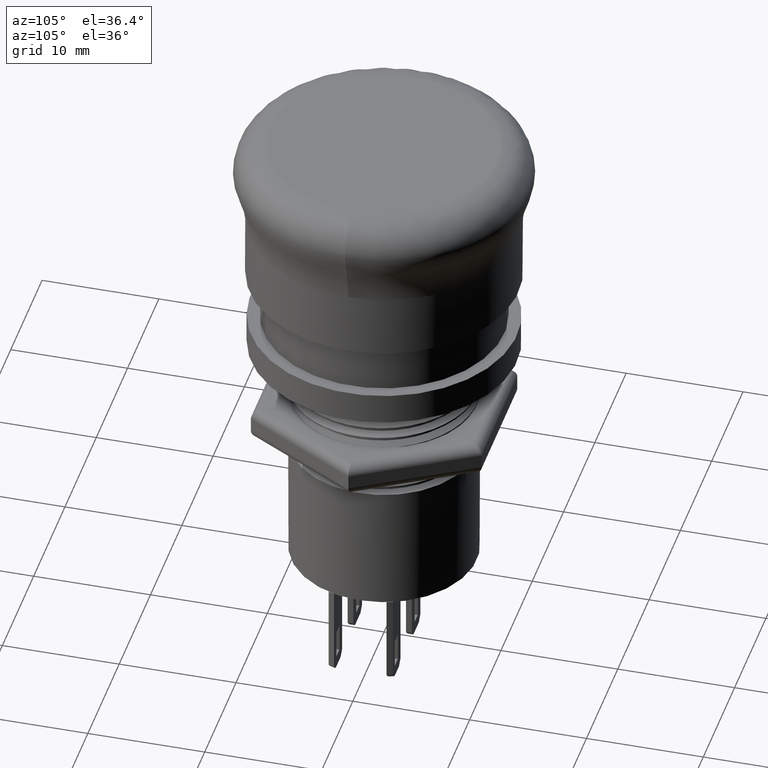
[diagram: clean part render]
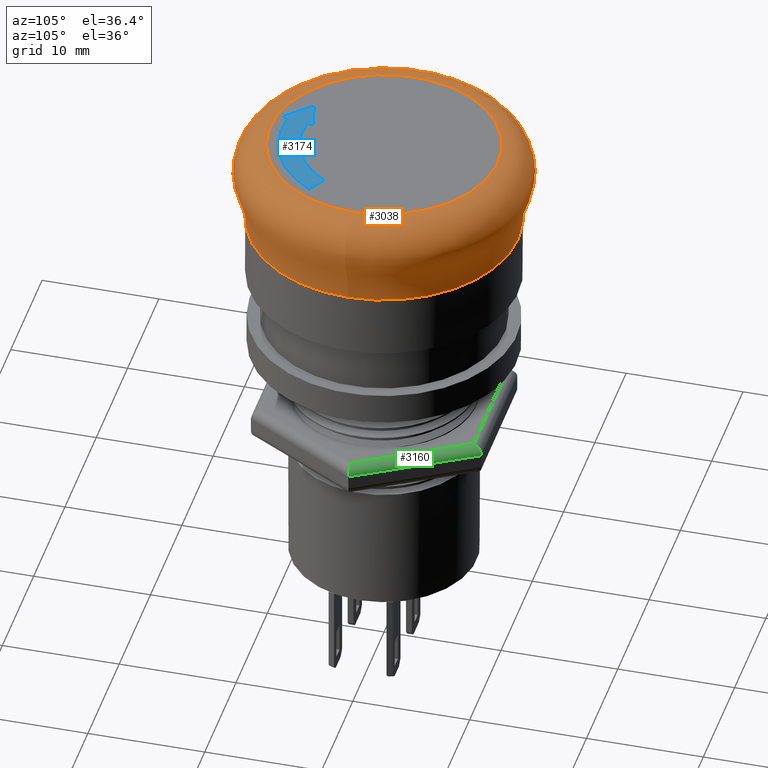
[diagram: same view with three faces highlighted in distinct colors, each labeled with its STEP entity id]
A machine part, auxiliary view with three faces highlighted in distinct colors.
Their STEP definitions:

[orange] entity #3038 — the highlighted face is a freeform B-spline surface patch.
#131=(
BOUNDED_CURVE()
B_SPLINE_CURVE(5,(#4568,#4569,#4570,#4571,#4572,#4573,#4574,#4575,#4576,
#4577,#4578,#4579,#4580,#4581,#4582),.UNSPECIFIED.,.F.,.F.)
B_SPLINE_CURVE_WITH_KNOTS((6,1,1,1,1,1,1,1,1,1,6),(0.,0.1,0.2,0.3,0.4,0.5,
0.6,0.7,0.8,0.9,1.),.UNSPECIFIED.)
CURVE()
GEOMETRIC_REPRESENTATION_ITEM()
RATIONAL_B_SPLINE_CURVE((1.,1.,1.,1.,1.,1.,1.,1.,1.,1.,1.,1.,1.,1.,1.))
REPRESENTATION_ITEM('')
);
#140=(
BOUNDED_SURFACE()
B_SPLINE_SURFACE(5,2,((#4432,#4433,#4434,#4435,#4436,#4437,#4438,#4439,
#4440),(#4441,#4442,#4443,#4444,#4445,#4446,#4447,#4448,#4449),(#4450,#4451,
#4452,#4453,#4454,#4455,#4456,#4457,#4458),(#4459,#4460,#4461,#4462,#4463,
#4464,#4465,#4466,#4467),(#4468,#4469,#4470,#4471,#4472,#4473,#4474,#4475,
#4476),(#4477,#4478,#4479,#4480,#4481,#4482,#4483,#4484,#4485),(#4486,#4487,
#4488,#4489,#4490,#4491,#4492,#4493,#4494),(#4495,#4496,#4497,#4498,#4499,
#4500,#4501,#4502,#4503),(#4504,#4505,#4506,#4507,#4508,#4509,#4510,#4511,
#4512),(#4513,#4514,#4515,#4516,#4517,#4518,#4519,#4520,#4521),(#4522,#4523,
#4524,#4525,#4526,#4527,#4528,#4529,#4530),(#4531,#4532,#4533,#4534,#4535,
#4536,#4537,#4538,#4539),(#4540,#4541,#4542,#4543,#4544,#4545,#4546,#4547,
#4548),(#4549,#4550,#4551,#4552,#4553,#4554,#4555,#4556,#4557),(#4558,#4559,
#4560,#4561,#4562,#4563,#4564,#4565,#4566)),.UNSPECIFIED.,.F.,.T.,.F.)
B_SPLINE_SURFACE_WITH_KNOTS((6,1,1,1,1,1,1,1,1,1,6),(3,2,2,2,3),(-1.,-0.9,
-0.8,-0.7,-0.6,-0.5,-0.4,-0.3,-0.2,-0.1,0.),(0.,1.5707963267949,3.14159265358979,
4.71238898038469,6.28318530717959),.UNSPECIFIED.)
GEOMETRIC_REPRESENTATION_ITEM()
RATIONAL_B_SPLINE_SURFACE(((1.,0.707106781186548,1.,0.707106781186548,1.,
0.707106781186548,1.,0.707106781186548,1.),(1.,0.707106781186548,1.,0.707106781186548,
1.,0.707106781186548,1.,0.707106781186548,1.),(1.,0.707106781186548,1.,
0.707106781186548,1.,0.707106781186548,1.,0.707106781186548,1.),(1.,0.707106781186548,
1.,0.707106781186548,1.,0.707106781186548,1.,0.707106781186548,1.),(1.,
0.707106781186548,1.,0.707106781186548,1.,0.707106781186548,1.,0.707106781186548,
1.),(1.,0.707106781186548,1.,0.707106781186548,1.,0.707106781186548,1.,
0.707106781186548,1.),(1.,0.707106781186548,1.,0.707106781186548,1.,0.707106781186548,
1.,0.707106781186548,1.),(1.,0.707106781186548,1.,0.707106781186548,1.,
0.707106781186548,1.,0.707106781186548,1.),(1.,0.707106781186548,1.,0.707106781186548,
1.,0.707106781186548,1.,0.707106781186548,1.),(1.,0.707106781186548,1.,
0.707106781186548,1.,0.707106781186548,1.,0.707106781186548,1.),(1.,0.707106781186548,
1.,0.707106781186548,1.,0.707106781186548,1.,0.707106781186548,1.),(1.,
0.707106781186548,1.,0.707106781186548,1.,0.707106781186548,1.,0.707106781186548,
1.),(1.,0.707106781186548,1.,0.707106781186548,1.,0.707106781186548,1.,
0.707106781186548,1.),(1.,0.707106781186548,1.,0.707106781186548,1.,0.707106781186548,
1.,0.707106781186548,1.),(1.,0.707106781186548,1.,0.707106781186548,1.,
0.707106781186548,1.,0.707106781186548,1.)))
REPRESENTATION_ITEM('')
SURFACE()
);
#154=CIRCLE('',#3260,11.5);
#155=CIRCLE('',#3261,11.5);
#156=CIRCLE('',#3262,9.75);
#279=FACE_OUTER_BOUND('',#461,.T.);
#461=EDGE_LOOP('',(#2116,#2117,#2118,#2119,#2120));
#1312=VERTEX_POINT('',#4427);
#1313=VERTEX_POINT('',#4428);
#1314=VERTEX_POINT('',#4567);
#1625=EDGE_CURVE('',#1312,#1313,#154,.T.);
#1626=EDGE_CURVE('',#1313,#1312,#155,.T.);
#1628=EDGE_CURVE('',#1312,#1314,#131,.T.);
#1629=EDGE_CURVE('',#1314,#1314,#156,.T.);
#2116=ORIENTED_EDGE('',*,*,#1628,.F.);
#2117=ORIENTED_EDGE('',*,*,#1625,.T.);
#2118=ORIENTED_EDGE('',*,*,#1626,.T.);
#2119=ORIENTED_EDGE('',*,*,#1628,.T.);
#2120=ORIENTED_EDGE('',*,*,#1629,.F.);
#3038=ADVANCED_FACE('',(#279),#140,.T.);
#3260=AXIS2_PLACEMENT_3D('',#4429,#3604,#3605);
#3261=AXIS2_PLACEMENT_3D('',#4430,#3606,#3607);
#3262=AXIS2_PLACEMENT_3D('',#4583,#3609,#3610);
#3604=DIRECTION('center_axis',(0.,0.,1.));
#3605=DIRECTION('ref_axis',(1.,0.,0.));
#3606=DIRECTION('center_axis',(0.,0.,1.));
#3607=DIRECTION('ref_axis',(1.,0.,0.));
#3609=DIRECTION('center_axis',(0.,0.,1.));
#3610=DIRECTION('ref_axis',(1.,0.,0.));
#4427=CARTESIAN_POINT('',(11.5,0.,-7.5));
#4428=CARTESIAN_POINT('',(-11.5,-1.40834381901946E-15,-7.5));
#4429=CARTESIAN_POINT('Origin',(0.,0.,-7.5));
#4430=CARTESIAN_POINT('Origin',(0.,0.,-7.5));
#4432=CARTESIAN_POINT('Ctrl Pts',(9.75,0.,5.97015314584335E-16));
#4433=CARTESIAN_POINT('Ctrl Pts',(9.75,9.75,5.97015314584335E-16));
#4434=CARTESIAN_POINT('Ctrl Pts',(0.,9.75,5.97015314584335E-16));
#4435=CARTESIAN_POINT('Ctrl Pts',(-9.75,9.75,5.97015314584335E-16));
#4436=CARTESIAN_POINT('Ctrl Pts',(-9.75,0.,5.97015314584335E-16));
#4437=CARTESIAN_POINT('Ctrl Pts',(-9.75,-9.75,5.97015314584335E-16));
#4438=CARTESIAN_POINT('Ctrl Pts',(0.,-9.75,5.97015314584335E-16));
#4439=CARTESIAN_POINT('Ctrl Pts',(9.75,-9.75,5.97015314584335E-16));
#4440=CARTESIAN_POINT('Ctrl Pts',(9.75,0.,5.97015314584335E-16));
#4441=CARTESIAN_POINT('Ctrl Pts',(10.018893641115,0.,4.56875828449484E-16));
#4442=CARTESIAN_POINT('Ctrl Pts',(10.018893641115,10.018893641115,4.56875828449484E-16));
#4443=CARTESIAN_POINT('Ctrl Pts',(0.,10.018893641115,4.56875828449484E-16));
#4444=CARTESIAN_POINT('Ctrl Pts',(-10.018893641115,10.018893641115,4.56875828449484E-16));
#4445=CARTESIAN_POINT('Ctrl Pts',(-10.018893641115,0.,4.56875828449484E-16));
#4446=CARTESIAN_POINT('Ctrl Pts',(-10.018893641115,-10.018893641115,4.56875828449484E-16));
#4447=CARTESIAN_POINT('Ctrl Pts',(0.,-10.018893641115,4.56875828449484E-16));
#4448=CARTESIAN_POINT('Ctrl Pts',(10.018893641115,-10.018893641115,4.56875828449484E-16));
#4449=CARTESIAN_POINT('Ctrl Pts',(10.018893641115,0.,4.56875828449484E-16));
#4450=CARTESIAN_POINT('Ctrl Pts',(10.5242112222006,0.,-0.0478451842684234));
#4451=CARTESIAN_POINT('Ctrl Pts',(10.5242112222006,10.5242112222006,-0.0478451842684234));
#4452=CARTESIAN_POINT('Ctrl Pts',(0.,10.5242112222006,-0.0478451842684234));
#4453=CARTESIAN_POINT('Ctrl Pts',(-10.5242112222006,10.5242112222006,-0.0478451842684234));
#4454=CARTESIAN_POINT('Ctrl Pts',(-10.5242112222006,0.,-0.0478451842684234));
#4455=CARTESIAN_POINT('Ctrl Pts',(-10.5242112222006,-10.5242112222006,-0.0478451842684234));
#4456=CARTESIAN_POINT('Ctrl Pts',(0.,-10.5242112222006,-0.0478451842684234));
#4457=CARTESIAN_POINT('Ctrl Pts',(10.5242112222006,-10.5242112222006,-0.0478451842684234));
#4458=CARTESIAN_POINT('Ctrl Pts',(10.5242112222006,0.,-0.0478451842684234));
#4459=CARTESIAN_POINT('Ctrl Pts',(11.1847296103582,0.,-0.263058789673942));
#4460=CARTESIAN_POINT('Ctrl Pts',(11.1847296103581,11.1847296103581,-0.263058789673942));
#4461=CARTESIAN_POINT('Ctrl Pts',(0.,11.1847296103582,-0.263058789673942));
#4462=CARTESIAN_POINT('Ctrl Pts',(-11.1847296103581,11.1847296103581,-0.263058789673942));
#4463=CARTESIAN_POINT('Ctrl Pts',(-11.1847296103582,0.,-0.263058789673942));
#4464=CARTESIAN_POINT('Ctrl Pts',(-11.1847296103581,-11.1847296103581,-0.263058789673942));
#4465=CARTESIAN_POINT('Ctrl Pts',(0.,-11.1847296103582,-0.263058789673942));
#4466=CARTESIAN_POINT('Ctrl Pts',(11.1847296103581,-11.1847296103581,-0.263058789673942));
#4467=CARTESIAN_POINT('Ctrl Pts',(11.1847296103582,0.,-0.263058789673942));
#4468=CARTESIAN_POINT('Ctrl Pts',(11.8678992580045,0.,-0.801485428901451));
#4469=CARTESIAN_POINT('Ctrl Pts',(11.8678992580045,11.8678992580045,-0.801485428901451));
#4470=CARTESIAN_POINT('Ctrl Pts',(0.,11.8678992580045,-0.801485428901451));
#4471=CARTESIAN_POINT('Ctrl Pts',(-11.8678992580045,11.8678992580045,-0.801485428901451));
#4472=CARTESIAN_POINT('Ctrl Pts',(-11.8678992580045,0.,-0.801485428901451));
#4473=CARTESIAN_POINT('Ctrl Pts',(-11.8678992580045,-11.8678992580045,-0.801485428901451));
#4474=CARTESIAN_POINT('Ctrl Pts',(0.,-11.8678992580045,-0.801485428901451));
#4475=CARTESIAN_POINT('Ctrl Pts',(11.8678992580045,-11.8678992580045,-0.801485428901451));
#4476=CARTESIAN_POINT('Ctrl Pts',(11.8678992580045,0.,-0.801485428901451));
#4477=CARTESIAN_POINT('Ctrl Pts',(12.3815843858349,0.,-1.70719313862978));
#4478=CARTESIAN_POINT('Ctrl Pts',(12.3815843858349,12.3815843858349,-1.70719313862978));
#4479=CARTESIAN_POINT('Ctrl Pts',(0.,12.3815843858349,-1.70719313862978));
#4480=CARTESIAN_POINT('Ctrl Pts',(-12.3815843858349,12.3815843858349,-1.70719313862978));
#4481=CARTESIAN_POINT('Ctrl Pts',(-12.3815843858349,0.,-1.70719313862978));
#4482=CARTESIAN_POINT('Ctrl Pts',(-12.3815843858349,-12.3815843858349,-1.70719313862978));
#4483=CARTESIAN_POINT('Ctrl Pts',(0.,-12.3815843858349,-1.70719313862978));
#4484=CARTESIAN_POINT('Ctrl Pts',(12.3815843858349,-12.3815843858349,-1.70719313862978));
#4485=CARTESIAN_POINT('Ctrl Pts',(12.3815843858349,0.,-1.70719313862978));
#4486=CARTESIAN_POINT('Ctrl Pts',(12.5646345769069,0.,-2.64964781800863));
#4487=CARTESIAN_POINT('Ctrl Pts',(12.5646345769069,12.5646345769069,-2.64964781800863));
#4488=CARTESIAN_POINT('Ctrl Pts',(0.,12.5646345769069,-2.64964781800863));
#4489=CARTESIAN_POINT('Ctrl Pts',(-12.5646345769069,12.5646345769069,-2.64964781800863));
#4490=CARTESIAN_POINT('Ctrl Pts',(-12.5646345769069,0.,-2.64964781800863));
#4491=CARTESIAN_POINT('Ctrl Pts',(-12.5646345769069,-12.5646345769069,-2.64964781800863));
#4492=CARTESIAN_POINT('Ctrl Pts',(0.,-12.5646345769069,-2.64964781800863));
#4493=CARTESIAN_POINT('Ctrl Pts',(12.5646345769069,-12.5646345769069,-2.64964781800863));
#4494=CARTESIAN_POINT('Ctrl Pts',(12.5646345769069,0.,-2.64964781800863));
#4495=CARTESIAN_POINT('Ctrl Pts',(12.4535927540103,0.,-3.47288815264197));
#4496=CARTESIAN_POINT('Ctrl Pts',(12.4535927540103,12.4535927540103,-3.47288815264197));
#4497=CARTESIAN_POINT('Ctrl Pts',(0.,12.4535927540103,-3.47288815264197));
#4498=CARTESIAN_POINT('Ctrl Pts',(-12.4535927540103,12.4535927540103,-3.47288815264197));
#4499=CARTESIAN_POINT('Ctrl Pts',(-12.4535927540103,0.,-3.47288815264197));
#4500=CARTESIAN_POINT('Ctrl Pts',(-12.4535927540103,-12.4535927540103,-3.47288815264197));
#4501=CARTESIAN_POINT('Ctrl Pts',(0.,-12.4535927540103,-3.47288815264197));
#4502=CARTESIAN_POINT('Ctrl Pts',(12.4535927540103,-12.4535927540103,-3.47288815264197));
#4503=CARTESIAN_POINT('Ctrl Pts',(12.4535927540103,0.,-3.47288815264197));
#4504=CARTESIAN_POINT('Ctrl Pts',(12.1779408548287,0.,-4.19112761762211));
#4505=CARTESIAN_POINT('Ctrl Pts',(12.1779408548287,12.1779408548287,-4.19112761762211));
#4506=CARTESIAN_POINT('Ctrl Pts',(0.,12.1779408548287,-4.19112761762211));
#4507=CARTESIAN_POINT('Ctrl Pts',(-12.1779408548287,12.1779408548287,-4.19112761762211));
#4508=CARTESIAN_POINT('Ctrl Pts',(-12.1779408548287,0.,-4.19112761762211));
#4509=CARTESIAN_POINT('Ctrl Pts',(-12.1779408548287,-12.1779408548287,-4.19112761762211));
#4510=CARTESIAN_POINT('Ctrl Pts',(0.,-12.1779408548287,-4.19112761762211));
#4511=CARTESIAN_POINT('Ctrl Pts',(12.1779408548287,-12.1779408548287,-4.19112761762211));
#4512=CARTESIAN_POINT('Ctrl Pts',(12.1779408548287,0.,-4.19112761762211));
#4513=CARTESIAN_POINT('Ctrl Pts',(11.8945658674826,0.,-4.92515301837581));
#4514=CARTESIAN_POINT('Ctrl Pts',(11.8945658674826,11.8945658674826,-4.92515301837581));
#4515=CARTESIAN_POINT('Ctrl Pts',(0.,11.8945658674826,-4.92515301837581));
#4516=CARTESIAN_POINT('Ctrl Pts',(-11.8945658674826,11.8945658674826,-4.92515301837581));
#4517=CARTESIAN_POINT('Ctrl Pts',(-11.8945658674826,0.,-4.92515301837581));
#4518=CARTESIAN_POINT('Ctrl Pts',(-11.8945658674826,-11.8945658674826,-4.92515301837581));
#4519=CARTESIAN_POINT('Ctrl Pts',(0.,-11.8945658674826,-4.92515301837581));
#4520=CARTESIAN_POINT('Ctrl Pts',(11.8945658674826,-11.8945658674826,-4.92515301837581));
#4521=CARTESIAN_POINT('Ctrl Pts',(11.8945658674826,0.,-4.92515301837581));
#4522=CARTESIAN_POINT('Ctrl Pts',(11.6651294235013,0.,-5.70576853305536));
#4523=CARTESIAN_POINT('Ctrl Pts',(11.6651294235013,11.6651294235013,-5.70576853305536));
#4524=CARTESIAN_POINT('Ctrl Pts',(0.,11.6651294235013,-5.70576853305536));
#4525=CARTESIAN_POINT('Ctrl Pts',(-11.6651294235013,11.6651294235013,-5.70576853305536));
#4526=CARTESIAN_POINT('Ctrl Pts',(-11.6651294235013,0.,-5.70576853305536));
#4527=CARTESIAN_POINT('Ctrl Pts',(-11.6651294235013,-11.6651294235013,-5.70576853305536));
#4528=CARTESIAN_POINT('Ctrl Pts',(0.,-11.6651294235013,-5.70576853305536));
#4529=CARTESIAN_POINT('Ctrl Pts',(11.6651294235013,-11.6651294235013,-5.70576853305536));
#4530=CARTESIAN_POINT('Ctrl Pts',(11.6651294235013,0.,-5.70576853305536));
#4531=CARTESIAN_POINT('Ctrl Pts',(11.5525625426983,0.,-6.387480267856));
#4532=CARTESIAN_POINT('Ctrl Pts',(11.5525625426983,11.5525625426983,-6.387480267856));
#4533=CARTESIAN_POINT('Ctrl Pts',(0.,11.5525625426983,-6.387480267856));
#4534=CARTESIAN_POINT('Ctrl Pts',(-11.5525625426983,11.5525625426983,-6.387480267856));
#4535=CARTESIAN_POINT('Ctrl Pts',(-11.5525625426983,0.,-6.387480267856));
#4536=CARTESIAN_POINT('Ctrl Pts',(-11.5525625426983,-11.5525625426983,-6.387480267856));
#4537=CARTESIAN_POINT('Ctrl Pts',(0.,-11.5525625426983,-6.387480267856));
#4538=CARTESIAN_POINT('Ctrl Pts',(11.5525625426983,-11.5525625426983,-6.387480267856));
#4539=CARTESIAN_POINT('Ctrl Pts',(11.5525625426983,0.,-6.387480267856));
#4540=CARTESIAN_POINT('Ctrl Pts',(11.510078689566,0.,-6.93112825332586));
#4541=CARTESIAN_POINT('Ctrl Pts',(11.510078689566,11.510078689566,-6.93112825332586));
#4542=CARTESIAN_POINT('Ctrl Pts',(0.,11.510078689566,-6.93112825332586));
#4543=CARTESIAN_POINT('Ctrl Pts',(-11.510078689566,11.510078689566,-6.93112825332586));
#4544=CARTESIAN_POINT('Ctrl Pts',(-11.510078689566,0.,-6.93112825332586));
#4545=CARTESIAN_POINT('Ctrl Pts',(-11.510078689566,-11.510078689566,-6.93112825332586));
#4546=CARTESIAN_POINT('Ctrl Pts',(0.,-11.510078689566,-6.93112825332586));
#4547=CARTESIAN_POINT('Ctrl Pts',(11.510078689566,-11.510078689566,-6.93112825332586));
#4548=CARTESIAN_POINT('Ctrl Pts',(11.510078689566,0.,-6.93112825332586));
#4549=CARTESIAN_POINT('Ctrl Pts',(11.500279545386,0.,-7.30798290315974));
#4550=CARTESIAN_POINT('Ctrl Pts',(11.500279545386,11.500279545386,-7.30798290315974));
#4551=CARTESIAN_POINT('Ctrl Pts',(0.,11.500279545386,-7.30798290315974));
#4552=CARTESIAN_POINT('Ctrl Pts',(-11.500279545386,11.500279545386,-7.30798290315974));
#4553=CARTESIAN_POINT('Ctrl Pts',(-11.500279545386,0.,-7.30798290315974));
#4554=CARTESIAN_POINT('Ctrl Pts',(-11.500279545386,-11.500279545386,-7.30798290315974));
#4555=CARTESIAN_POINT('Ctrl Pts',(0.,-11.500279545386,-7.30798290315974));
#4556=CARTESIAN_POINT('Ctrl Pts',(11.500279545386,-11.500279545386,-7.30798290315974));
#4557=CARTESIAN_POINT('Ctrl Pts',(11.500279545386,0.,-7.30798290315974));
#4558=CARTESIAN_POINT('Ctrl Pts',(11.5,0.,-7.5));
#4559=CARTESIAN_POINT('Ctrl Pts',(11.5,11.5,-7.5));
#4560=CARTESIAN_POINT('Ctrl Pts',(0.,11.5,-7.5));
#4561=CARTESIAN_POINT('Ctrl Pts',(-11.5,11.5,-7.5));
#4562=CARTESIAN_POINT('Ctrl Pts',(-11.5,0.,-7.5));
#4563=CARTESIAN_POINT('Ctrl Pts',(-11.5,-11.5,-7.5));
#4564=CARTESIAN_POINT('Ctrl Pts',(0.,-11.5,-7.5));
#4565=CARTESIAN_POINT('Ctrl Pts',(11.5,-11.5,-7.5));
#4566=CARTESIAN_POINT('Ctrl Pts',(11.5,0.,-7.5));
#4567=CARTESIAN_POINT('',(9.75,0.,5.97015314584335E-16));
#4568=CARTESIAN_POINT('Ctrl Pts',(11.5,0.,-7.5));
#4569=CARTESIAN_POINT('Ctrl Pts',(11.500279545386,0.,-7.30798290315974));
#4570=CARTESIAN_POINT('Ctrl Pts',(11.510078689566,0.,-6.93112825332586));
#4571=CARTESIAN_POINT('Ctrl Pts',(11.5525625426983,0.,-6.387480267856));
#4572=CARTESIAN_POINT('Ctrl Pts',(11.6651294235013,0.,-5.70576853305536));
#4573=CARTESIAN_POINT('Ctrl Pts',(11.8945658674826,0.,-4.92515301837581));
#4574=CARTESIAN_POINT('Ctrl Pts',(12.1779408548287,0.,-4.19112761762211));
#4575=CARTESIAN_POINT('Ctrl Pts',(12.4535927540103,0.,-3.47288815264197));
#4576=CARTESIAN_POINT('Ctrl Pts',(12.5646345769069,0.,-2.64964781800863));
#4577=CARTESIAN_POINT('Ctrl Pts',(12.3815843858349,0.,-1.70719313862978));
#4578=CARTESIAN_POINT('Ctrl Pts',(11.8678992580045,0.,-0.801485428901451));
#4579=CARTESIAN_POINT('Ctrl Pts',(11.1847296103582,0.,-0.263058789673942));
#4580=CARTESIAN_POINT('Ctrl Pts',(10.5242112222006,0.,-0.0478451842684234));
#4581=CARTESIAN_POINT('Ctrl Pts',(10.018893641115,0.,4.56875828449484E-16));
#4582=CARTESIAN_POINT('Ctrl Pts',(9.75,0.,5.97015314584335E-16));
#4583=CARTESIAN_POINT('Origin',(0.,0.,5.97015314584335E-16));

[blue] entity #3174 — the highlighted planar face has unit normal (0, 0, 1).
#188=CIRCLE('',#3433,7.);
#190=CIRCLE('',#3437,8.75);
#415=FACE_OUTER_BOUND('',#615,.T.);
#615=EDGE_LOOP('',(#2795,#2796,#2797,#2798,#2799,#2800,#2801));
#904=LINE('',#7913,#1221);
#908=LINE('',#7925,#1225);
#911=LINE('',#7931,#1228);
#914=LINE('',#7937,#1231);
#917=LINE('',#7941,#1234);
#1221=VECTOR('',#4172,10.);
#1225=VECTOR('',#4184,10.);
#1228=VECTOR('',#4189,10.);
#1231=VECTOR('',#4194,10.);
#1234=VECTOR('',#4199,10.);
#1521=VERTEX_POINT('',#7904);
#1522=VERTEX_POINT('',#7906);
#1524=VERTEX_POINT('',#7912);
#1526=VERTEX_POINT('',#7918);
#1528=VERTEX_POINT('',#7924);
#1530=VERTEX_POINT('',#7930);
#1532=VERTEX_POINT('',#7936);
#1944=EDGE_CURVE('',#1522,#1521,#188,.T.);
#1947=EDGE_CURVE('',#1524,#1522,#904,.T.);
#1950=EDGE_CURVE('',#1526,#1524,#190,.T.);
#1953=EDGE_CURVE('',#1528,#1526,#908,.T.);
#1956=EDGE_CURVE('',#1530,#1528,#911,.T.);
#1959=EDGE_CURVE('',#1532,#1530,#914,.T.);
#1962=EDGE_CURVE('',#1521,#1532,#917,.T.);
#2795=ORIENTED_EDGE('',*,*,#1962,.T.);
#2796=ORIENTED_EDGE('',*,*,#1959,.T.);
#2797=ORIENTED_EDGE('',*,*,#1956,.T.);
#2798=ORIENTED_EDGE('',*,*,#1953,.T.);
#2799=ORIENTED_EDGE('',*,*,#1950,.T.);
#2800=ORIENTED_EDGE('',*,*,#1947,.T.);
#2801=ORIENTED_EDGE('',*,*,#1944,.T.);
#2996=PLANE('',#3442);
#3174=ADVANCED_FACE('',(#415),#2996,.T.);
#3433=AXIS2_PLACEMENT_3D('',#7907,#4166,#4167);
#3437=AXIS2_PLACEMENT_3D('',#7919,#4178,#4179);
#3442=AXIS2_PLACEMENT_3D('',#7942,#4200,#4201);
#4166=DIRECTION('center_axis',(0.,0.,-1.));
#4167=DIRECTION('ref_axis',(-1.,0.,0.));
#4172=DIRECTION('',(-0.866025403784438,0.5,0.));
#4178=DIRECTION('center_axis',(0.,0.,1.));
#4179=DIRECTION('ref_axis',(-1.,0.,0.));
#4184=DIRECTION('',(0.173648177666932,0.984807753012208,0.));
#4189=DIRECTION('',(0.696132912706658,-0.717912924975268,0.));
#4194=DIRECTION('',(-0.977677791505937,-0.210109818894963,0.));
#4199=DIRECTION('',(0.173648177666924,0.984807753012209,0.));
#4200=DIRECTION('center_axis',(0.,0.,1.));
#4201=DIRECTION('ref_axis',(-1.,0.,0.));
#7904=CARTESIAN_POINT('',(-1.21553724366852,-6.89365427108546,0.));
#7906=CARTESIAN_POINT('',(6.06217782649107,-3.5,0.));
#7907=CARTESIAN_POINT('Origin',(0.,0.,0.));
#7912=CARTESIAN_POINT('',(7.57772228311384,-4.375,0.));
#7913=CARTESIAN_POINT('',(0.,0.,0.));
#7918=CARTESIAN_POINT('',(-1.51942155458565,-8.61706783885682,0.));
#7919=CARTESIAN_POINT('Origin',(0.,0.,0.));
#7924=CARTESIAN_POINT('',(-1.60624564341911,-9.10947171536292,0.));
#7925=CARTESIAN_POINT('',(-1.51942155458565,-8.61706783885682,0.));
#7930=CARTESIAN_POINT('',(-3.69708855693889,-6.95321229376405,0.));
#7931=CARTESIAN_POINT('',(-1.60624564341911,-9.10947171536292,0.));
#7936=CARTESIAN_POINT('',(-1.12871315483505,-6.40125039457935,0.));
#7937=CARTESIAN_POINT('',(-3.69708855693889,-6.95321229376405,0.));
#7941=CARTESIAN_POINT('',(-1.21553724366852,-6.89365427108546,0.));
#7942=CARTESIAN_POINT('Origin',(1.94031686308747,-6.30473585768146,0.));

[green] entity #3160 — the highlighted cylindrical surface (edge-blend (fillet) strip) has radius 0.8 mm, axis along (-0.5, 0.866, 0).
#27=ELLIPSE('',#3420,0.923760430703402,0.8);
#28=ELLIPSE('',#3422,0.9237604307034,0.8);
#245=CYLINDRICAL_SURFACE('',#3421,0.8);
#401=FACE_OUTER_BOUND('',#600,.T.);
#600=EDGE_LOOP('',(#2735,#2736,#2737,#2738));
#886=LINE('',#7841,#1203);
#897=LINE('',#7886,#1214);
#1203=VECTOR('',#4088,10.);
#1214=VECTOR('',#4139,10.);
#1501=VERTEX_POINT('',#7833);
#1503=VERTEX_POINT('',#7839);
#1516=VERTEX_POINT('',#7881);
#1517=VERTEX_POINT('',#7885);
#1913=EDGE_CURVE('',#1501,#1503,#886,.T.);
#1934=EDGE_CURVE('',#1516,#1503,#27,.T.);
#1935=EDGE_CURVE('',#1516,#1517,#897,.T.);
#1936=EDGE_CURVE('',#1517,#1501,#28,.T.);
#2735=ORIENTED_EDGE('',*,*,#1913,.T.);
#2736=ORIENTED_EDGE('',*,*,#1934,.F.);
#2737=ORIENTED_EDGE('',*,*,#1935,.T.);
#2738=ORIENTED_EDGE('',*,*,#1936,.T.);
#3160=ADVANCED_FACE('',(#401),#245,.T.);
#3420=AXIS2_PLACEMENT_3D('',#7883,#4135,#4136);
#3421=AXIS2_PLACEMENT_3D('',#7884,#4137,#4138);
#3422=AXIS2_PLACEMENT_3D('',#7887,#4140,#4141);
#4088=DIRECTION('',(-0.499999999999999,0.866025403784439,0.));
#4135=DIRECTION('center_axis',(-0.866025403784437,0.500000000000002,1.20185167898971E-15));
#4136=DIRECTION('ref_axis',(0.500000000000002,0.866025403784437,2.08166817117213E-15));
#4137=DIRECTION('center_axis',(-0.499999999999999,0.866025403784439,0.));
#4138=DIRECTION('ref_axis',(0.612372435695788,0.353553390593269,0.707106781186555));
#4139=DIRECTION('',(0.499999999999999,-0.866025403784439,0.));
#4140=DIRECTION('center_axis',(-1.80277751848459E-15,1.,-1.04083408558607E-15));
#4141=DIRECTION('ref_axis',(1.,1.80277751848459E-15,-1.80277751848458E-15));
#7833=CARTESIAN_POINT('',(11.4026678164951,3.05311331771918E-15,-26.));
#7839=CARTESIAN_POINT('',(5.70133390824757,9.875,-26.));
#7841=CARTESIAN_POINT('',(9.97733433943322,2.46875,-26.));
#7881=CARTESIAN_POINT('',(5.23945369289586,9.075,-25.2));
#7883=CARTESIAN_POINT('Origin',(5.23945369289586,9.075,-26.));
#7884=CARTESIAN_POINT('Origin',(9.28451401640567,2.06875,-26.));
#7885=CARTESIAN_POINT('',(10.4789073857917,2.22044604925031E-15,-25.2));
#7886=CARTESIAN_POINT('',(9.28451401640567,2.06875,-25.2));
#7887=CARTESIAN_POINT('Origin',(10.4789073857917,1.38777878078145E-15,-26.));